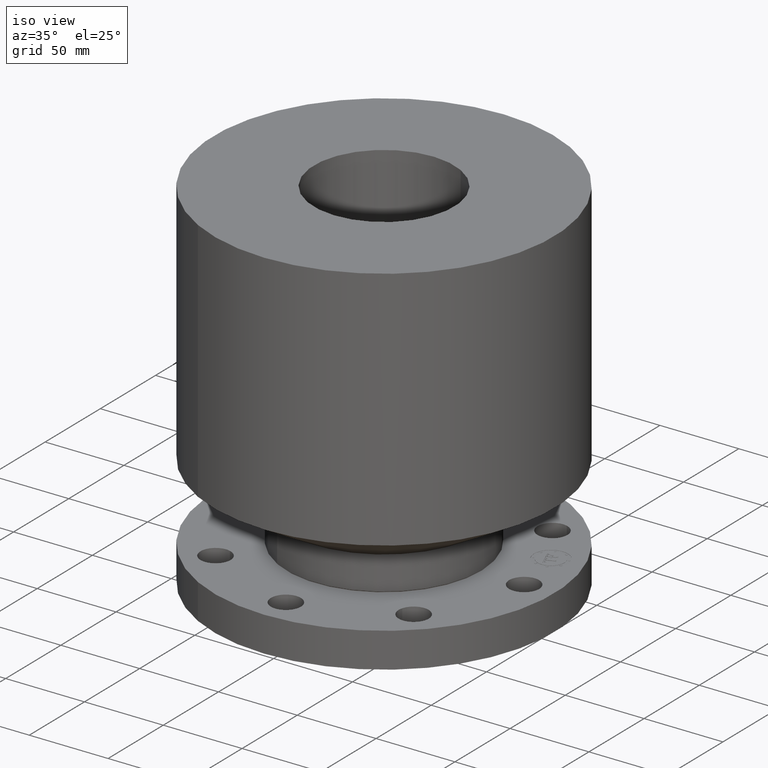
[diagram: clean part render]
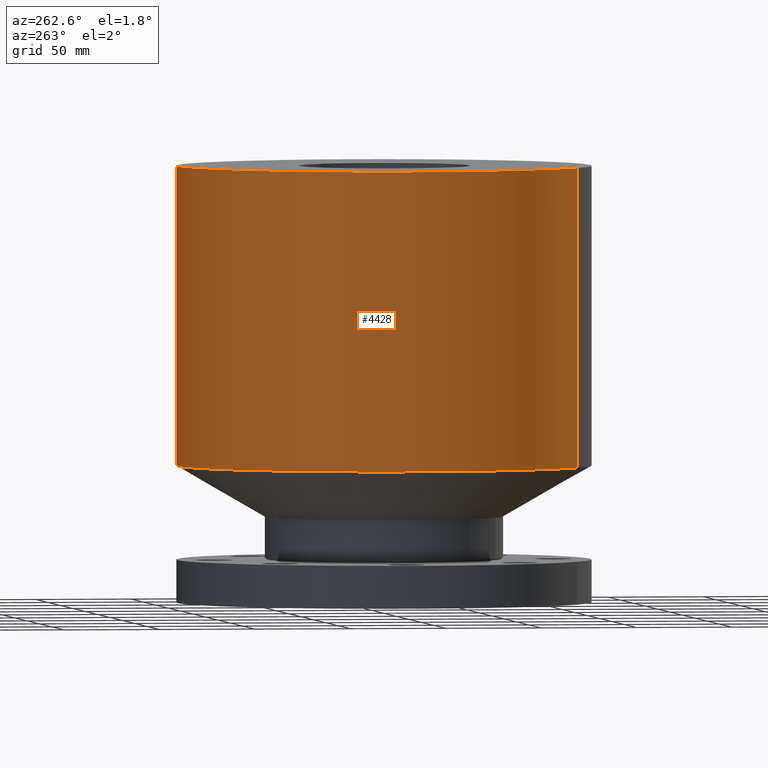
[diagram: tour spotlight — one face highlighted and labeled with its STEP entity id]
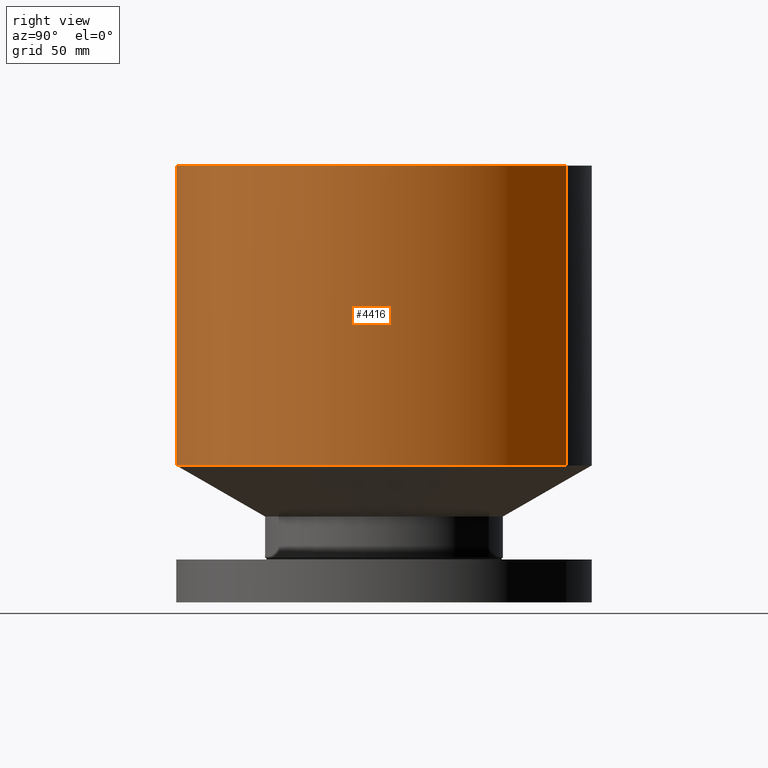
[diagram: tour spotlight — one face highlighted and labeled with its STEP entity id]
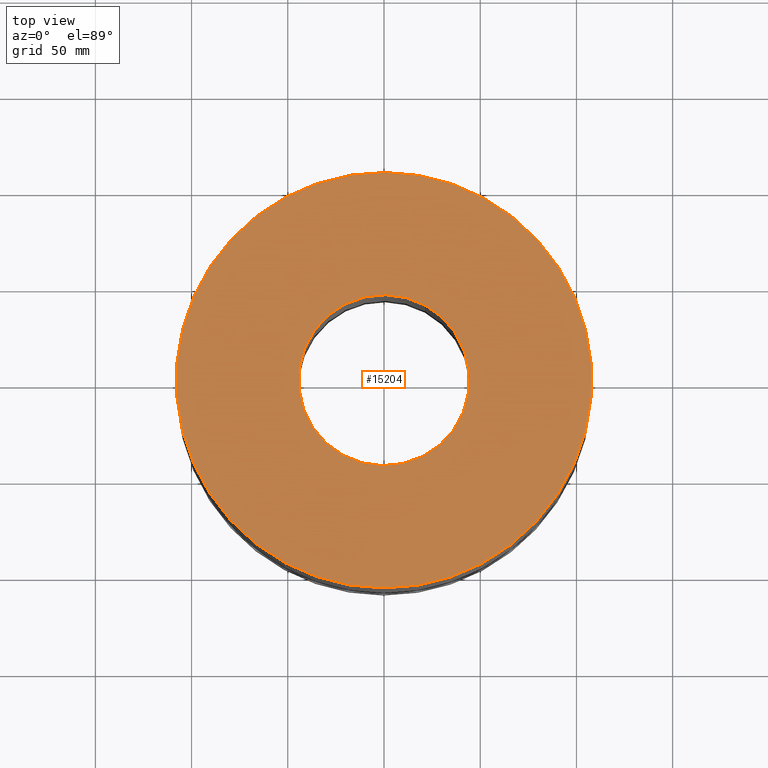
[diagram: tour spotlight — one face highlighted and labeled with its STEP entity id]
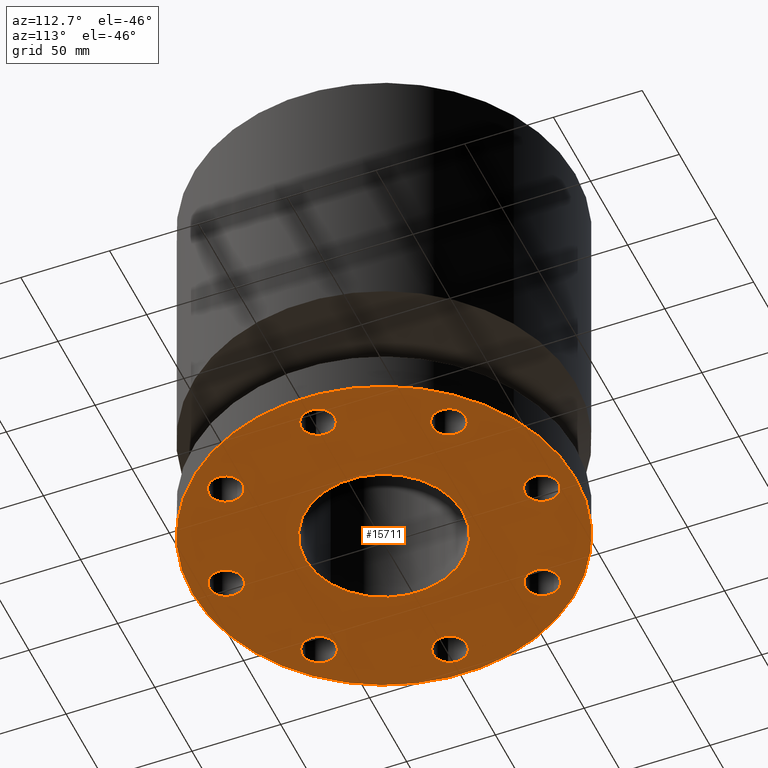
[diagram: tour spotlight — one face highlighted and labeled with its STEP entity id]
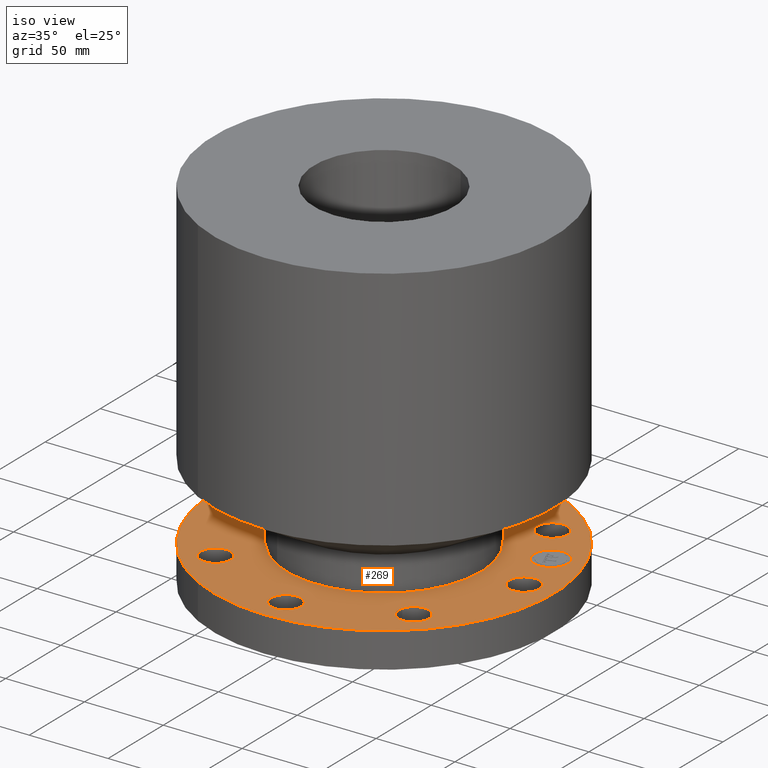
[diagram: tour spotlight — one face highlighted and labeled with its STEP entity id]
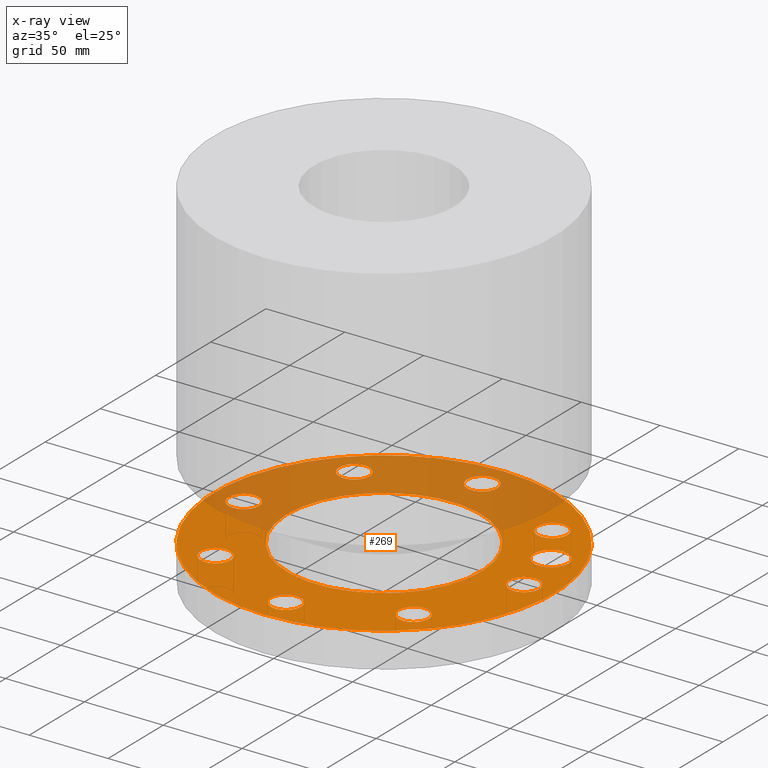
[diagram: x-ray of the same camera — body ghosted, this tour face saturated]
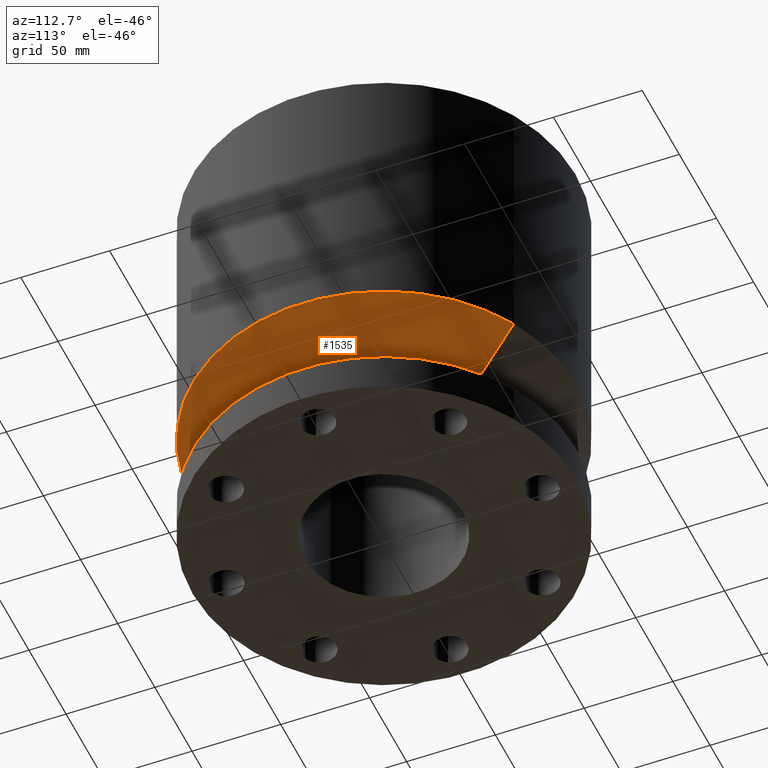
[diagram: tour spotlight — one face highlighted and labeled with its STEP entity id]
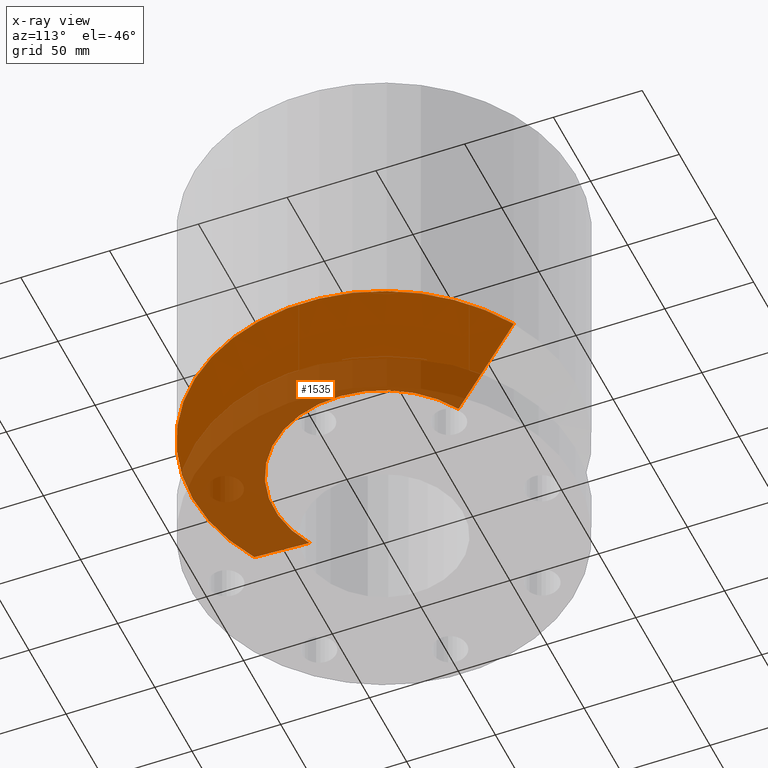
[diagram: x-ray of the same camera — body ghosted, this tour face saturated]
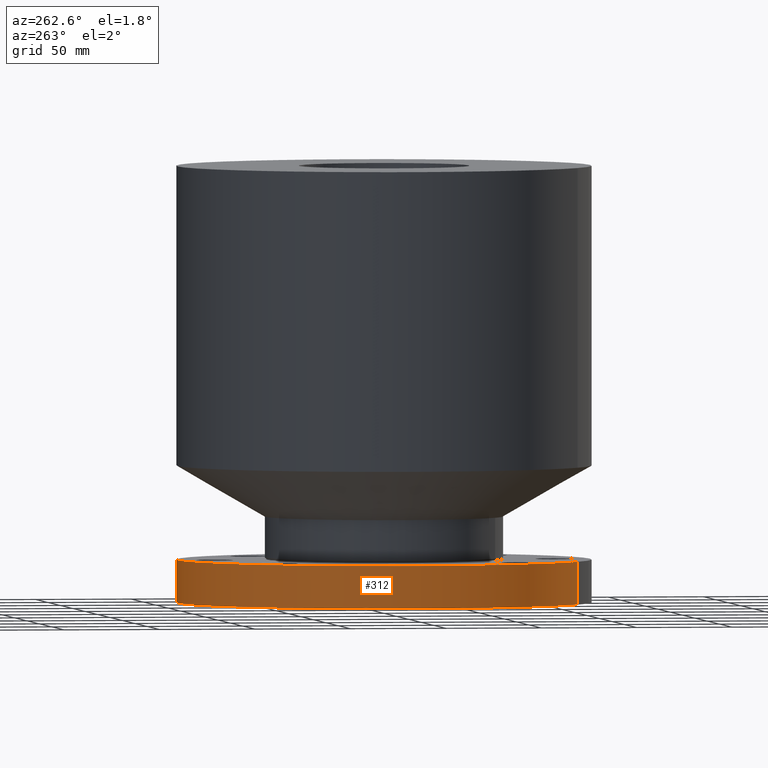
[diagram: tour spotlight — one face highlighted and labeled with its STEP entity id]
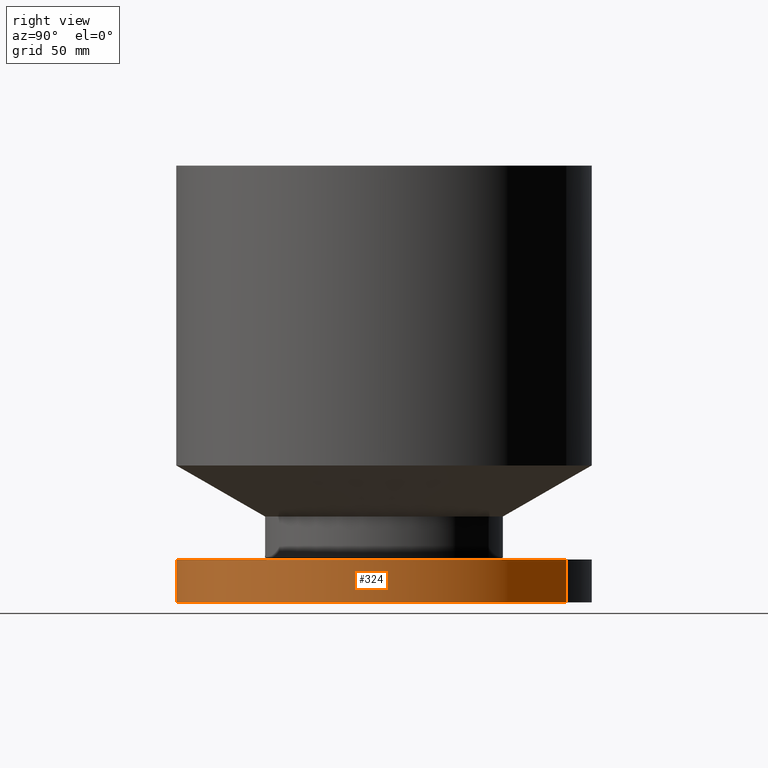
[diagram: tour spotlight — one face highlighted and labeled with its STEP entity id]
A machine part: a face-by-face anatomy tour. The part has 418 B-rep faces; the first image is the clean iso view, then the 8 largest visible faces are spotlighted one at a time (largest first), each with its STEP entity span.

Face 1 — auxiliary view, entity #4428. In plain terms, the highlighted cylindrical surface (partial cylindrical patch) has radius 107.95 mm, axis along (0, 0, -1).
Definition (entity closure, byte-faithful):
#285=AXIS2_PLACEMENT_3D('Cylinder Axis2P3D',#282,#283,#284) ;
#1538=AXIS2_PLACEMENT_3D('Circle Axis2P3D',#1536,#1537,$) ;
#4419=AXIS2_PLACEMENT_3D('Circle Axis2P3D',#4417,#4418,$) ;
#282=CARTESIAN_POINT('Axis2P3D Location',(0.,0.,4.43750000002)) ;
#1514=CARTESIAN_POINT('Vertex',(2.03755853908,3.72972588805,2.80250398724)) ;
#1521=CARTESIAN_POINT('Vertex',(-2.03755853908,-3.72972588805,2.80250398724)) ;
#1536=CARTESIAN_POINT('Axis2P3D Location',(0.,0.,2.80250398724)) ;
#4391=CARTESIAN_POINT('Line Origine',(2.03755853908,3.72972588805,5.87000199364)) ;
#4395=CARTESIAN_POINT('Vertex',(2.03755853908,3.72972588805,8.93750000004)) ;
#4402=CARTESIAN_POINT('Vertex',(-2.03755853908,-3.72972588805,8.93750000004)) ;
#4405=CARTESIAN_POINT('Line Origine',(-2.03755853908,-3.72972588805,5.87000199364)) ;
#4417=CARTESIAN_POINT('Axis2P3D Location',(0.,0.,8.93750000004)) ;
#283=DIRECTION('Axis2P3D Direction',(0.,0.,-0.0393700787402)) ;
#284=DIRECTION('Axis2P3D XDirection',(-0.0188750212049,-0.0345504945626,0.)) ;
#1537=DIRECTION('Axis2P3D Direction',(-0.,0.,0.0393700787402)) ;
#4392=DIRECTION('Vector Direction',(0.,0.,-0.0393700787402)) ;
#4406=DIRECTION('Vector Direction',(0.,0.,-0.0393700787402)) ;
#4418=DIRECTION('Axis2P3D Direction',(0.,0.,-0.0393700787402)) ;
#4393=VECTOR('Line Direction',#4392,0.0393700787402) ;
#4407=VECTOR('Line Direction',#4406,0.0393700787402) ;
#4423=ORIENTED_EDGE('',*,*,#1540,.F.) ;
#4424=ORIENTED_EDGE('',*,*,#4409,.T.) ;
#4425=ORIENTED_EDGE('',*,*,#4421,.T.) ;
#4426=ORIENTED_EDGE('',*,*,#4397,.F.) ;
#4428=ADVANCED_FACE('PartBody',(#4427),#286,.T.) ;
#1539=CIRCLE('generated circle',#1538,4.25000000002) ;
#4420=CIRCLE('generated circle',#4419,4.25000000002) ;
#286=CYLINDRICAL_SURFACE('generated cylinder',#285,4.25000000002) ;
#1540=EDGE_CURVE('',#1522,#1515,#1539,.F.) ;
#4397=EDGE_CURVE('',#1515,#4396,#4394,.F.) ;
#4409=EDGE_CURVE('',#1522,#4403,#4408,.F.) ;
#4421=EDGE_CURVE('',#4403,#4396,#4420,.T.) ;
#4422=EDGE_LOOP('',(#4423,#4424,#4425,#4426)) ;
#4427=FACE_OUTER_BOUND('',#4422,.T.) ;
#4394=LINE('Line',#4391,#4393) ;
#4408=LINE('Line',#4405,#4407) ;
#1515=VERTEX_POINT('',#1514) ;
#1522=VERTEX_POINT('',#1521) ;
#4396=VERTEX_POINT('',#4395) ;
#4403=VERTEX_POINT('',#4402) ;

Face 2 — right view, entity #4416. In plain terms, the highlighted cylindrical surface (partial cylindrical patch) has radius 107.95 mm, axis along (0, 0, -1).
Definition (entity closure, byte-faithful):
#285=AXIS2_PLACEMENT_3D('Cylinder Axis2P3D',#282,#283,#284) ;
#1519=AXIS2_PLACEMENT_3D('Circle Axis2P3D',#1517,#1518,$) ;
#4400=AXIS2_PLACEMENT_3D('Circle Axis2P3D',#4398,#4399,$) ;
#282=CARTESIAN_POINT('Axis2P3D Location',(0.,0.,4.43750000002)) ;
#1514=CARTESIAN_POINT('Vertex',(2.03755853908,3.72972588805,2.80250398724)) ;
#1517=CARTESIAN_POINT('Axis2P3D Location',(0.,0.,2.80250398724)) ;
#1521=CARTESIAN_POINT('Vertex',(-2.03755853908,-3.72972588805,2.80250398724)) ;
#4391=CARTESIAN_POINT('Line Origine',(2.03755853908,3.72972588805,5.87000199364)) ;
#4395=CARTESIAN_POINT('Vertex',(2.03755853908,3.72972588805,8.93750000004)) ;
#4398=CARTESIAN_POINT('Axis2P3D Location',(0.,0.,8.93750000004)) ;
#4402=CARTESIAN_POINT('Vertex',(-2.03755853908,-3.72972588805,8.93750000004)) ;
#4405=CARTESIAN_POINT('Line Origine',(-2.03755853908,-3.72972588805,5.87000199364)) ;
#283=DIRECTION('Axis2P3D Direction',(0.,0.,-0.0393700787402)) ;
#284=DIRECTION('Axis2P3D XDirection',(-0.0188750212049,-0.0345504945626,0.)) ;
#1518=DIRECTION('Axis2P3D Direction',(-0.,0.,0.0393700787402)) ;
#4392=DIRECTION('Vector Direction',(0.,0.,-0.0393700787402)) ;
#4399=DIRECTION('Axis2P3D Direction',(0.,0.,-0.0393700787402)) ;
#4406=DIRECTION('Vector Direction',(0.,0.,-0.0393700787402)) ;
#4393=VECTOR('Line Direction',#4392,0.0393700787402) ;
#4407=VECTOR('Line Direction',#4406,0.0393700787402) ;
#4411=ORIENTED_EDGE('',*,*,#1523,.F.) ;
#4412=ORIENTED_EDGE('',*,*,#4397,.T.) ;
#4413=ORIENTED_EDGE('',*,*,#4404,.T.) ;
#4414=ORIENTED_EDGE('',*,*,#4409,.F.) ;
#4416=ADVANCED_FACE('PartBody',(#4415),#286,.T.) ;
#1520=CIRCLE('generated circle',#1519,4.25000000002) ;
#4401=CIRCLE('generated circle',#4400,4.25000000002) ;
#286=CYLINDRICAL_SURFACE('generated cylinder',#285,4.25000000002) ;
#1523=EDGE_CURVE('',#1515,#1522,#1520,.F.) ;
#4397=EDGE_CURVE('',#1515,#4396,#4394,.F.) ;
#4404=EDGE_CURVE('',#4396,#4403,#4401,.T.) ;
#4409=EDGE_CURVE('',#1522,#4403,#4408,.F.) ;
#4410=EDGE_LOOP('',(#4411,#4412,#4413,#4414)) ;
#4415=FACE_OUTER_BOUND('',#4410,.T.) ;
#4394=LINE('Line',#4391,#4393) ;
#4408=LINE('Line',#4405,#4407) ;
#1515=VERTEX_POINT('',#1514) ;
#1522=VERTEX_POINT('',#1521) ;
#4396=VERTEX_POINT('',#4395) ;
#4403=VERTEX_POINT('',#4402) ;

Face 3 — top view, entity #15204. In plain terms, the highlighted planar face has unit normal (0, 0, -1).
Definition (entity closure, byte-faithful):
#4400=AXIS2_PLACEMENT_3D('Circle Axis2P3D',#4398,#4399,$) ;
#4419=AXIS2_PLACEMENT_3D('Circle Axis2P3D',#4417,#4418,$) ;
#15180=AXIS2_PLACEMENT_3D('Plane Axis2P3D',#15177,#15178,#15179) ;
#15188=AXIS2_PLACEMENT_3D('Circle Axis2P3D',#15186,#15187,$) ;
#15197=AXIS2_PLACEMENT_3D('Circle Axis2P3D',#15195,#15196,$) ;
#4395=CARTESIAN_POINT('Vertex',(2.03755853908,3.72972588805,8.93750000004)) ;
#4398=CARTESIAN_POINT('Axis2P3D Location',(0.,0.,8.93750000004)) ;
#4402=CARTESIAN_POINT('Vertex',(-2.03755853908,-3.72972588805,8.93750000004)) ;
#4417=CARTESIAN_POINT('Axis2P3D Location',(0.,0.,8.93750000004)) ;
#15177=CARTESIAN_POINT('Axis2P3D Location',(0.,4.25000000002,8.93750000004)) ;
#15186=CARTESIAN_POINT('Axis2P3D Location',(0.,0.,8.93750000004)) ;
#15190=CARTESIAN_POINT('Vertex',(-0.838994692561,-1.53576948331,8.93750000004)) ;
#15192=CARTESIAN_POINT('Vertex',(0.838994692561,1.53576948331,8.93750000004)) ;
#15195=CARTESIAN_POINT('Axis2P3D Location',(0.,0.,8.93750000004)) ;
#4399=DIRECTION('Axis2P3D Direction',(0.,0.,-0.0393700787402)) ;
#4418=DIRECTION('Axis2P3D Direction',(0.,0.,-0.0393700787402)) ;
#15178=DIRECTION('Axis2P3D Direction',(0.,0.,-0.0393700787402)) ;
#15179=DIRECTION('Axis2P3D XDirection',(0.0393700787402,0.,0.)) ;
#15187=DIRECTION('Axis2P3D Direction',(0.,0.,-0.0393700787402)) ;
#15196=DIRECTION('Axis2P3D Direction',(0.,0.,-0.0393700787402)) ;
#15183=ORIENTED_EDGE('',*,*,#4404,.F.) ;
#15184=ORIENTED_EDGE('',*,*,#4421,.F.) ;
#15201=ORIENTED_EDGE('',*,*,#15194,.T.) ;
#15202=ORIENTED_EDGE('',*,*,#15199,.T.) ;
#15203=FACE_BOUND('',#15200,.T.) ;
#15204=ADVANCED_FACE('PartBody',(#15185,#15203),#15181,.F.) ;
#4401=CIRCLE('generated circle',#4400,4.25000000002) ;
#4420=CIRCLE('generated circle',#4419,4.25000000002) ;
#15189=CIRCLE('generated circle',#15188,1.75000000001) ;
#15198=CIRCLE('generated circle',#15197,1.75000000001) ;
#4404=EDGE_CURVE('',#4396,#4403,#4401,.T.) ;
#4421=EDGE_CURVE('',#4403,#4396,#4420,.T.) ;
#15194=EDGE_CURVE('',#15191,#15193,#15189,.T.) ;
#15199=EDGE_CURVE('',#15193,#15191,#15198,.T.) ;
#15182=EDGE_LOOP('',(#15183,#15184)) ;
#15200=EDGE_LOOP('',(#15201,#15202)) ;
#15185=FACE_OUTER_BOUND('',#15182,.T.) ;
#15181=PLANE('',#15180) ;
#4396=VERTEX_POINT('',#4395) ;
#4403=VERTEX_POINT('',#4402) ;
#15191=VERTEX_POINT('',#15190) ;
#15193=VERTEX_POINT('',#15192) ;

Face 4 — auxiliary view, entity #15711. In plain terms, the highlighted planar face has unit normal (0, 0, 1).
Definition (entity closure, byte-faithful):
#51=AXIS2_PLACEMENT_3D('Circle Axis2P3D',#49,#50,$) ;
#272=AXIS2_PLACEMENT_3D('Circle Axis2P3D',#270,#271,$) ;
#289=AXIS2_PLACEMENT_3D('Circle Axis2P3D',#287,#288,$) ;
#315=AXIS2_PLACEMENT_3D('Circle Axis2P3D',#313,#314,$) ;
#382=AXIS2_PLACEMENT_3D('Circle Axis2P3D',#380,#381,$) ;
#401=AXIS2_PLACEMENT_3D('Circle Axis2P3D',#399,#400,$) ;
#425=AXIS2_PLACEMENT_3D('Circle Axis2P3D',#423,#424,$) ;
#444=AXIS2_PLACEMENT_3D('Circle Axis2P3D',#442,#443,$) ;
#468=AXIS2_PLACEMENT_3D('Circle Axis2P3D',#466,#467,$) ;
#487=AXIS2_PLACEMENT_3D('Circle Axis2P3D',#485,#486,$) ;
#511=AXIS2_PLACEMENT_3D('Circle Axis2P3D',#509,#510,$) ;
#530=AXIS2_PLACEMENT_3D('Circle Axis2P3D',#528,#529,$) ;
#554=AXIS2_PLACEMENT_3D('Circle Axis2P3D',#552,#553,$) ;
#573=AXIS2_PLACEMENT_3D('Circle Axis2P3D',#571,#572,$) ;
#597=AXIS2_PLACEMENT_3D('Circle Axis2P3D',#595,#596,$) ;
#616=AXIS2_PLACEMENT_3D('Circle Axis2P3D',#614,#615,$) ;
#640=AXIS2_PLACEMENT_3D('Circle Axis2P3D',#638,#639,$) ;
#659=AXIS2_PLACEMENT_3D('Circle Axis2P3D',#657,#658,$) ;
#15630=AXIS2_PLACEMENT_3D('Circle Axis2P3D',#15628,#15629,$) ;
#15656=AXIS2_PLACEMENT_3D('Circle Axis2P3D',#15654,#15655,$) ;
#15669=AXIS2_PLACEMENT_3D('Plane Axis2P3D',#15666,#15667,#15668) ;
#46=CARTESIAN_POINT('Vertex',(3.82909346072,0.179784576977,2.2401153548E-016)) ;
#49=CARTESIAN_POINT('Axis2P3D Location',(3.50000000001,0.,0.)) ;
#53=CARTESIAN_POINT('Vertex',(3.1709065393,-0.179784576977,2.2401153548E-016)) ;
#270=CARTESIAN_POINT('Axis2P3D Location',(3.50000000001,0.,0.)) ;
#287=CARTESIAN_POINT('Axis2P3D Location',(0.,0.,5.59482469102E-016)) ;
#291=CARTESIAN_POINT('Vertex',(-2.03755853908,-3.72972588805,5.59482469102E-016)) ;
#293=CARTESIAN_POINT('Vertex',(2.03755853908,3.72972588805,5.59482469102E-016)) ;
#313=CARTESIAN_POINT('Axis2P3D Location',(0.,0.,5.59482469102E-016)) ;
#377=CARTESIAN_POINT('Vertex',(2.83470484541,-2.58045105834,2.2401153548E-016)) ;
#380=CARTESIAN_POINT('Axis2P3D Location',(2.47487373416,-2.47487373416,0.)) ;
#384=CARTESIAN_POINT('Vertex',(2.11504262292,-2.36929640998,2.2401153548E-016)) ;
#399=CARTESIAN_POINT('Axis2P3D Location',(2.47487373416,-2.47487373416,0.)) ;
#420=CARTESIAN_POINT('Vertex',(0.179784576977,-3.82909346072,2.2401153548E-016)) ;
#423=CARTESIAN_POINT('Axis2P3D Location',(-3.45169279251E-016,-3.50000000001,0.)) ;
#427=CARTESIAN_POINT('Vertex',(-0.179784576977,-3.1709065393,2.2401153548E-016)) ;
#442=CARTESIAN_POINT('Axis2P3D Location',(-3.45169279251E-016,-3.50000000001,0.)) ;
#463=CARTESIAN_POINT('Vertex',(-2.58045105834,-2.83470484541,2.2401153548E-016)) ;
#466=CARTESIAN_POINT('Axis2P3D Location',(-2.47487373416,-2.47487373416,0.)) ;
#470=CARTESIAN_POINT('Vertex',(-2.36929640998,-2.11504262292,2.2401153548E-016)) ;
#485=CARTESIAN_POINT('Axis2P3D Location',(-2.47487373416,-2.47487373416,0.)) ;
#506=CARTESIAN_POINT('Vertex',(-3.82909346072,-0.179784576977,2.2401153548E-016)) ;
#509=CARTESIAN_POINT('Axis2P3D Location',(-3.50000000001,-4.28626379703E-016,0.)) ;
#513=CARTESIAN_POINT('Vertex',(-3.1709065393,0.179784576977,2.2401153548E-016)) ;
#528=CARTESIAN_POINT('Axis2P3D Location',(-3.50000000001,-4.28626379703E-016,0.)) ;
#549=CARTESIAN_POINT('Vertex',(-2.83470484541,2.58045105834,2.2401153548E-016)) ;
#552=CARTESIAN_POINT('Axis2P3D Location',(-2.47487373416,2.47487373416,0.)) ;
#556=CARTESIAN_POINT('Vertex',(-2.11504262292,2.36929640998,2.2401153548E-016)) ;
#571=CARTESIAN_POINT('Axis2P3D Location',(-2.47487373416,2.47487373416,0.)) ;
#592=CARTESIAN_POINT('Vertex',(-0.179784576977,3.82909346072,2.2401153548E-016)) ;
#595=CARTESIAN_POINT('Axis2P3D Location',(-6.42939569555E-016,3.50000000001,0.)) ;
#599=CARTESIAN_POINT('Vertex',(0.179784576977,3.1709065393,2.2401153548E-016)) ;
#614=CARTESIAN_POINT('Axis2P3D Location',(-6.42939569555E-016,3.50000000001,0.)) ;
#635=CARTESIAN_POINT('Vertex',(2.58045105834,2.83470484541,2.2401153548E-016)) ;
#638=CARTESIAN_POINT('Axis2P3D Location',(2.47487373416,2.47487373416,0.)) ;
#642=CARTESIAN_POINT('Vertex',(2.36929640998,2.11504262292,2.2401153548E-016)) ;
#657=CARTESIAN_POINT('Axis2P3D Location',(2.47487373416,2.47487373416,0.)) ;
#15628=CARTESIAN_POINT('Axis2P3D Location',(0.,0.,0.)) ;
#15632=CARTESIAN_POINT('Vertex',(-0.838994692561,-1.53576948331,0.)) ;
#15634=CARTESIAN_POINT('Vertex',(0.838994692561,1.53576948331,0.)) ;
#15654=CARTESIAN_POINT('Axis2P3D Location',(0.,0.,0.)) ;
#15666=CARTESIAN_POINT('Axis2P3D Location',(0.,0.,0.)) ;
#50=DIRECTION('Axis2P3D Direction',(0.,-0.,0.0393700787402)) ;
#271=DIRECTION('Axis2P3D Direction',(0.,-0.,0.0393700787402)) ;
#288=DIRECTION('Axis2P3D Direction',(0.,0.,-0.0393700787402)) ;
#314=DIRECTION('Axis2P3D Direction',(0.,0.,-0.0393700787402)) ;
#381=DIRECTION('Axis2P3D Direction',(-0.,0.,0.0393700787402)) ;
#400=DIRECTION('Axis2P3D Direction',(-0.,0.,0.0393700787402)) ;
#424=DIRECTION('Axis2P3D Direction',(-0.,0.,0.0393700787402)) ;
#443=DIRECTION('Axis2P3D Direction',(-0.,0.,0.0393700787402)) ;
#467=DIRECTION('Axis2P3D Direction',(0.,0.,0.0393700787402)) ;
#486=DIRECTION('Axis2P3D Direction',(0.,0.,0.0393700787402)) ;
#510=DIRECTION('Axis2P3D Direction',(0.,0.,0.0393700787402)) ;
#529=DIRECTION('Axis2P3D Direction',(0.,0.,0.0393700787402)) ;
#553=DIRECTION('Axis2P3D Direction',(0.,0.,0.0393700787402)) ;
#572=DIRECTION('Axis2P3D Direction',(0.,0.,0.0393700787402)) ;
#596=DIRECTION('Axis2P3D Direction',(0.,0.,0.0393700787402)) ;
#615=DIRECTION('Axis2P3D Direction',(0.,0.,0.0393700787402)) ;
#639=DIRECTION('Axis2P3D Direction',(0.,-0.,0.0393700787402)) ;
#658=DIRECTION('Axis2P3D Direction',(0.,-0.,0.0393700787402)) ;
#15629=DIRECTION('Axis2P3D Direction',(0.,0.,-0.0393700787402)) ;
#15655=DIRECTION('Axis2P3D Direction',(0.,0.,-0.0393700787402)) ;
#15667=DIRECTION('Axis2P3D Direction',(0.,0.,0.0393700787402)) ;
#15668=DIRECTION('Axis2P3D XDirection',(0.0393700787402,0.,0.)) ;
#15672=ORIENTED_EDGE('',*,*,#317,.T.) ;
#15673=ORIENTED_EDGE('',*,*,#295,.T.) ;
#15676=ORIENTED_EDGE('',*,*,#644,.F.) ;
#15677=ORIENTED_EDGE('',*,*,#661,.F.) ;
#15680=ORIENTED_EDGE('',*,*,#601,.F.) ;
#15681=ORIENTED_EDGE('',*,*,#618,.F.) ;
#15684=ORIENTED_EDGE('',*,*,#558,.F.) ;
#15685=ORIENTED_EDGE('',*,*,#575,.F.) ;
#15688=ORIENTED_EDGE('',*,*,#515,.F.) ;
#15689=ORIENTED_EDGE('',*,*,#532,.F.) ;
#15692=ORIENTED_EDGE('',*,*,#472,.F.) ;
#15693=ORIENTED_EDGE('',*,*,#489,.F.) ;
#15696=ORIENTED_EDGE('',*,*,#429,.F.) ;
#15697=ORIENTED_EDGE('',*,*,#446,.F.) ;
#15700=ORIENTED_EDGE('',*,*,#386,.F.) ;
#15701=ORIENTED_EDGE('',*,*,#403,.F.) ;
#15704=ORIENTED_EDGE('',*,*,#274,.F.) ;
#15705=ORIENTED_EDGE('',*,*,#55,.F.) ;
#15708=ORIENTED_EDGE('',*,*,#15658,.T.) ;
#15709=ORIENTED_EDGE('',*,*,#15636,.T.) ;
#15678=FACE_BOUND('',#15675,.T.) ;
#15682=FACE_BOUND('',#15679,.T.) ;
#15686=FACE_BOUND('',#15683,.T.) ;
#15690=FACE_BOUND('',#15687,.T.) ;
#15694=FACE_BOUND('',#15691,.T.) ;
#15698=FACE_BOUND('',#15695,.T.) ;
#15702=FACE_BOUND('',#15699,.T.) ;
#15706=FACE_BOUND('',#15703,.T.) ;
#15710=FACE_BOUND('',#15707,.T.) ;
#15711=ADVANCED_FACE('PartBody',(#15674,#15678,#15682,#15686,#15690,#15694,#15698,#15702,#15706,#15710),#15670,.F.) ;
#52=CIRCLE('generated circle',#51,0.375000000002) ;
#273=CIRCLE('generated circle',#272,0.375000000002) ;
#290=CIRCLE('generated circle',#289,4.25000000002) ;
#316=CIRCLE('generated circle',#315,4.25000000002) ;
#383=CIRCLE('generated circle',#382,0.375000000002) ;
#402=CIRCLE('generated circle',#401,0.375000000002) ;
#426=CIRCLE('generated circle',#425,0.375000000002) ;
#445=CIRCLE('generated circle',#444,0.375000000002) ;
#469=CIRCLE('generated circle',#468,0.375000000002) ;
#488=CIRCLE('generated circle',#487,0.375000000002) ;
#512=CIRCLE('generated circle',#511,0.375000000001) ;
#531=CIRCLE('generated circle',#530,0.375000000001) ;
#555=CIRCLE('generated circle',#554,0.375000000002) ;
#574=CIRCLE('generated circle',#573,0.375000000002) ;
#598=CIRCLE('generated circle',#597,0.375000000002) ;
#617=CIRCLE('generated circle',#616,0.375000000002) ;
#641=CIRCLE('generated circle',#640,0.375000000002) ;
#660=CIRCLE('generated circle',#659,0.375000000002) ;
#15631=CIRCLE('generated circle',#15630,1.75000000001) ;
#15657=CIRCLE('generated circle',#15656,1.75000000001) ;
#55=EDGE_CURVE('',#47,#54,#52,.F.) ;
#274=EDGE_CURVE('',#54,#47,#273,.F.) ;
#295=EDGE_CURVE('',#292,#294,#290,.T.) ;
#317=EDGE_CURVE('',#294,#292,#316,.T.) ;
#386=EDGE_CURVE('',#378,#385,#383,.F.) ;
#403=EDGE_CURVE('',#385,#378,#402,.F.) ;
#429=EDGE_CURVE('',#421,#428,#426,.F.) ;
#446=EDGE_CURVE('',#428,#421,#445,.F.) ;
#472=EDGE_CURVE('',#464,#471,#469,.F.) ;
#489=EDGE_CURVE('',#471,#464,#488,.F.) ;
#515=EDGE_CURVE('',#507,#514,#512,.F.) ;
#532=EDGE_CURVE('',#514,#507,#531,.F.) ;
#558=EDGE_CURVE('',#550,#557,#555,.F.) ;
#575=EDGE_CURVE('',#557,#550,#574,.F.) ;
#601=EDGE_CURVE('',#593,#600,#598,.F.) ;
#618=EDGE_CURVE('',#600,#593,#617,.F.) ;
#644=EDGE_CURVE('',#636,#643,#641,.F.) ;
#661=EDGE_CURVE('',#643,#636,#660,.F.) ;
#15636=EDGE_CURVE('',#15633,#15635,#15631,.F.) ;
#15658=EDGE_CURVE('',#15635,#15633,#15657,.F.) ;
#15671=EDGE_LOOP('',(#15672,#15673)) ;
#15675=EDGE_LOOP('',(#15676,#15677)) ;
#15679=EDGE_LOOP('',(#15680,#15681)) ;
#15683=EDGE_LOOP('',(#15684,#15685)) ;
#15687=EDGE_LOOP('',(#15688,#15689)) ;
#15691=EDGE_LOOP('',(#15692,#15693)) ;
#15695=EDGE_LOOP('',(#15696,#15697)) ;
#15699=EDGE_LOOP('',(#15700,#15701)) ;
#15703=EDGE_LOOP('',(#15704,#15705)) ;
#15707=EDGE_LOOP('',(#15708,#15709)) ;
#15674=FACE_OUTER_BOUND('',#15671,.T.) ;
#15670=PLANE('',#15669) ;
#47=VERTEX_POINT('',#46) ;
#54=VERTEX_POINT('',#53) ;
#292=VERTEX_POINT('',#291) ;
#294=VERTEX_POINT('',#293) ;
#378=VERTEX_POINT('',#377) ;
#385=VERTEX_POINT('',#384) ;
#421=VERTEX_POINT('',#420) ;
#428=VERTEX_POINT('',#427) ;
#464=VERTEX_POINT('',#463) ;
#471=VERTEX_POINT('',#470) ;
#507=VERTEX_POINT('',#506) ;
#514=VERTEX_POINT('',#513) ;
#550=VERTEX_POINT('',#549) ;
#557=VERTEX_POINT('',#556) ;
#593=VERTEX_POINT('',#592) ;
#600=VERTEX_POINT('',#599) ;
#636=VERTEX_POINT('',#635) ;
#643=VERTEX_POINT('',#642) ;
#15633=VERTEX_POINT('',#15632) ;
#15635=VERTEX_POINT('',#15634) ;

Face 5 — iso view, entity #269. An x-ray twin of the same camera follows (body ghosted, this face saturated) — the face is partly hidden behind the body. In plain terms, the highlighted planar face has unit normal (0, 0, -1).
Definition (entity closure, byte-faithful):
#65=AXIS2_PLACEMENT_3D('Circle Axis2P3D',#63,#64,$) ;
#78=AXIS2_PLACEMENT_3D('Plane Axis2P3D',#75,#76,#77) ;
#82=AXIS2_PLACEMENT_3D('Circle Axis2P3D',#80,#81,$) ;
#91=AXIS2_PLACEMENT_3D('Circle Axis2P3D',#89,#90,$) ;
#100=AXIS2_PLACEMENT_3D('Circle Axis2P3D',#98,#99,$) ;
#109=AXIS2_PLACEMENT_3D('Circle Axis2P3D',#107,#108,$) ;
#118=AXIS2_PLACEMENT_3D('Circle Axis2P3D',#116,#117,$) ;
#127=AXIS2_PLACEMENT_3D('Circle Axis2P3D',#125,#126,$) ;
#136=AXIS2_PLACEMENT_3D('Circle Axis2P3D',#134,#135,$) ;
#145=AXIS2_PLACEMENT_3D('Circle Axis2P3D',#143,#144,$) ;
#154=AXIS2_PLACEMENT_3D('Circle Axis2P3D',#152,#153,$) ;
#163=AXIS2_PLACEMENT_3D('Circle Axis2P3D',#161,#162,$) ;
#172=AXIS2_PLACEMENT_3D('Circle Axis2P3D',#170,#171,$) ;
#181=AXIS2_PLACEMENT_3D('Circle Axis2P3D',#179,#180,$) ;
#190=AXIS2_PLACEMENT_3D('Circle Axis2P3D',#188,#189,$) ;
#199=AXIS2_PLACEMENT_3D('Circle Axis2P3D',#197,#198,$) ;
#208=AXIS2_PLACEMENT_3D('Circle Axis2P3D',#206,#207,$) ;
#217=AXIS2_PLACEMENT_3D('Circle Axis2P3D',#215,#216,$) ;
#226=AXIS2_PLACEMENT_3D('Circle Axis2P3D',#224,#225,$) ;
#235=AXIS2_PLACEMENT_3D('Circle Axis2P3D',#233,#234,$) ;
#244=AXIS2_PLACEMENT_3D('Circle Axis2P3D',#242,#243,$) ;
#253=AXIS2_PLACEMENT_3D('Circle Axis2P3D',#251,#252,$) ;
#262=AXIS2_PLACEMENT_3D('Circle Axis2P3D',#260,#261,$) ;
#44=CARTESIAN_POINT('Vertex',(3.82909346072,0.179784576977,0.877500000004)) ;
#60=CARTESIAN_POINT('Vertex',(3.1709065393,-0.179784576977,0.877500000004)) ;
#63=CARTESIAN_POINT('Axis2P3D Location',(3.50000000001,0.,0.877500000004)) ;
#75=CARTESIAN_POINT('Axis2P3D Location',(0.,4.25000000002,0.877500000004)) ;
#80=CARTESIAN_POINT('Axis2P3D Location',(0.,0.,0.877500000004)) ;
#84=CARTESIAN_POINT('Vertex',(2.03755853908,3.72972588805,0.877500000004)) ;
#86=CARTESIAN_POINT('Vertex',(-2.03755853908,-3.72972588805,0.877500000004)) ;
#89=CARTESIAN_POINT('Axis2P3D Location',(0.,0.,0.877500000004)) ;
#98=CARTESIAN_POINT('Axis2P3D Location',(3.50000000001,0.,0.877500000004)) ;
#107=CARTESIAN_POINT('Axis2P3D Location',(0.,0.,0.877500000004)) ;
#111=CARTESIAN_POINT('Vertex',(-1.16260693112,-2.12813771259,0.877500000004)) ;
#113=CARTESIAN_POINT('Vertex',(1.16260693112,2.12813771259,0.877500000004)) ;
#116=CARTESIAN_POINT('Axis2P3D Location',(0.,0.,0.877500000004)) ;
#125=CARTESIAN_POINT('Axis2P3D Location',(2.47487373416,-2.47487373416,0.877500000004)) ;
#129=CARTESIAN_POINT('Vertex',(2.11504262292,-2.36929640998,0.877500000004)) ;
#131=CARTESIAN_POINT('Vertex',(2.83470484541,-2.58045105834,0.877500000004)) ;
#134=CARTESIAN_POINT('Axis2P3D Location',(2.47487373416,-2.47487373416,0.877500000004)) ;
#143=CARTESIAN_POINT('Axis2P3D Location',(-9.79094320929E-016,-3.50000000001,0.877500000004)) ;
#147=CARTESIAN_POINT('Vertex',(-0.179784576977,-3.1709065393,0.877500000004)) ;
#149=CARTESIAN_POINT('Vertex',(0.179784576977,-3.82909346072,0.877500000004)) ;
#152=CARTESIAN_POINT('Axis2P3D Location',(2.79741234551E-016,-3.50000000001,0.877500000004)) ;
#161=CARTESIAN_POINT('Axis2P3D Location',(-2.47487373416,-2.47487373416,0.877500000004)) ;
#165=CARTESIAN_POINT('Vertex',(-2.36929640998,-2.11504262292,0.877500000004)) ;
#167=CARTESIAN_POINT('Vertex',(-2.58045105834,-2.83470484541,0.877500000004)) ;
#170=CARTESIAN_POINT('Axis2P3D Location',(-2.47487373416,-2.47487373416,0.877500000004)) ;
#179=CARTESIAN_POINT('Axis2P3D Location',(-3.50000000001,-5.59482469102E-016,0.877500000004)) ;
#183=CARTESIAN_POINT('Vertex',(-3.1709065393,0.179784576977,0.877500000004)) ;
#185=CARTESIAN_POINT('Vertex',(-3.82909346072,-0.179784576977,0.877500000004)) ;
#188=CARTESIAN_POINT('Axis2P3D Location',(-3.50000000001,-5.59482469102E-016,0.877500000004)) ;
#197=CARTESIAN_POINT('Axis2P3D Location',(-2.47487373416,2.47487373416,0.877500000004)) ;
#201=CARTESIAN_POINT('Vertex',(-2.11504262292,2.36929640998,0.877500000004)) ;
#203=CARTESIAN_POINT('Vertex',(-2.83470484541,2.58045105834,0.877500000004)) ;
#206=CARTESIAN_POINT('Axis2P3D Location',(-2.47487373416,2.47487373416,0.877500000004)) ;
#215=CARTESIAN_POINT('Axis2P3D Location',(-6.2941777774E-016,3.50000000001,0.877500000004)) ;
#219=CARTESIAN_POINT('Vertex',(0.179784576977,3.1709065393,0.877500000004)) ;
#221=CARTESIAN_POINT('Vertex',(-0.179784576977,3.82909346072,0.877500000004)) ;
#224=CARTESIAN_POINT('Axis2P3D Location',(-5.24514814784E-016,3.50000000001,0.877500000004)) ;
#233=CARTESIAN_POINT('Axis2P3D Location',(2.47487373416,2.47487373416,0.877500000004)) ;
#237=CARTESIAN_POINT('Vertex',(2.36929640998,2.11504262292,0.877500000004)) ;
#239=CARTESIAN_POINT('Vertex',(2.58045105834,2.83470484541,0.877500000004)) ;
#242=CARTESIAN_POINT('Axis2P3D Location',(2.47487373416,2.47487373416,0.877500000004)) ;
#251=CARTESIAN_POINT('Axis2P3D Location',(3.2335783638,1.33939201328,0.877500000004)) ;
#255=CARTESIAN_POINT('Vertex',(3.39621882093,0.946743215891,0.877500000004)) ;
#257=CARTESIAN_POINT('Vertex',(3.07093790667,1.73204081068,0.877500000004)) ;
#260=CARTESIAN_POINT('Axis2P3D Location',(3.2335783638,1.33939201328,0.877500000004)) ;
#64=DIRECTION('Axis2P3D Direction',(0.,-0.,0.0393700787402)) ;
#76=DIRECTION('Axis2P3D Direction',(0.,0.,-0.0393700787402)) ;
#77=DIRECTION('Axis2P3D XDirection',(0.0393700787402,0.,0.)) ;
#81=DIRECTION('Axis2P3D Direction',(0.,0.,-0.0393700787402)) ;
#90=DIRECTION('Axis2P3D Direction',(0.,0.,-0.0393700787402)) ;
#99=DIRECTION('Axis2P3D Direction',(0.,0.,-0.0393700787402)) ;
#108=DIRECTION('Axis2P3D Direction',(0.,0.,-0.0393700787402)) ;
#117=DIRECTION('Axis2P3D Direction',(0.,0.,-0.0393700787402)) ;
#126=DIRECTION('Axis2P3D Direction',(0.,0.,-0.0393700787402)) ;
#135=DIRECTION('Axis2P3D Direction',(0.,0.,-0.0393700787402)) ;
#144=DIRECTION('Axis2P3D Direction',(0.,0.,-0.0393700787402)) ;
#153=DIRECTION('Axis2P3D Direction',(0.,0.,-0.0393700787402)) ;
#162=DIRECTION('Axis2P3D Direction',(0.,0.,-0.0393700787402)) ;
#171=DIRECTION('Axis2P3D Direction',(0.,0.,-0.0393700787402)) ;
#180=DIRECTION('Axis2P3D Direction',(0.,0.,-0.0393700787402)) ;
#189=DIRECTION('Axis2P3D Direction',(0.,0.,-0.0393700787402)) ;
#198=DIRECTION('Axis2P3D Direction',(0.,0.,-0.0393700787402)) ;
#207=DIRECTION('Axis2P3D Direction',(0.,0.,-0.0393700787402)) ;
#216=DIRECTION('Axis2P3D Direction',(0.,0.,-0.0393700787402)) ;
#225=DIRECTION('Axis2P3D Direction',(0.,0.,-0.0393700787402)) ;
#234=DIRECTION('Axis2P3D Direction',(0.,0.,-0.0393700787402)) ;
#243=DIRECTION('Axis2P3D Direction',(0.,0.,-0.0393700787402)) ;
#252=DIRECTION('Axis2P3D Direction',(0.,0.,-0.0393700787402)) ;
#261=DIRECTION('Axis2P3D Direction',(0.,0.,-0.0393700787402)) ;
#95=ORIENTED_EDGE('',*,*,#88,.F.) ;
#96=ORIENTED_EDGE('',*,*,#93,.F.) ;
#104=ORIENTED_EDGE('',*,*,#67,.T.) ;
#105=ORIENTED_EDGE('',*,*,#102,.T.) ;
#122=ORIENTED_EDGE('',*,*,#115,.T.) ;
#123=ORIENTED_EDGE('',*,*,#120,.T.) ;
#140=ORIENTED_EDGE('',*,*,#133,.T.) ;
#141=ORIENTED_EDGE('',*,*,#138,.T.) ;
#158=ORIENTED_EDGE('',*,*,#151,.T.) ;
#159=ORIENTED_EDGE('',*,*,#156,.T.) ;
#176=ORIENTED_EDGE('',*,*,#169,.T.) ;
#177=ORIENTED_EDGE('',*,*,#174,.T.) ;
#194=ORIENTED_EDGE('',*,*,#187,.T.) ;
#195=ORIENTED_EDGE('',*,*,#192,.T.) ;
#212=ORIENTED_EDGE('',*,*,#205,.T.) ;
#213=ORIENTED_EDGE('',*,*,#210,.T.) ;
#230=ORIENTED_EDGE('',*,*,#223,.T.) ;
#231=ORIENTED_EDGE('',*,*,#228,.T.) ;
#248=ORIENTED_EDGE('',*,*,#241,.T.) ;
#249=ORIENTED_EDGE('',*,*,#246,.T.) ;
#266=ORIENTED_EDGE('',*,*,#259,.F.) ;
#267=ORIENTED_EDGE('',*,*,#264,.F.) ;
#106=FACE_BOUND('',#103,.T.) ;
#124=FACE_BOUND('',#121,.T.) ;
#142=FACE_BOUND('',#139,.T.) ;
#160=FACE_BOUND('',#157,.T.) ;
#178=FACE_BOUND('',#175,.T.) ;
#196=FACE_BOUND('',#193,.T.) ;
#214=FACE_BOUND('',#211,.T.) ;
#232=FACE_BOUND('',#229,.T.) ;
#250=FACE_BOUND('',#247,.T.) ;
#268=FACE_BOUND('',#265,.T.) ;
#269=ADVANCED_FACE('PartBody',(#97,#106,#124,#142,#160,#178,#196,#214,#232,#250,#268),#79,.F.) ;
#66=CIRCLE('generated circle',#65,0.375000000002) ;
#83=CIRCLE('generated circle',#82,4.25000000002) ;
#92=CIRCLE('generated circle',#91,4.25000000002) ;
#101=CIRCLE('generated circle',#100,0.375000000002) ;
#110=CIRCLE('generated circle',#109,2.42500000001) ;
#119=CIRCLE('generated circle',#118,2.42500000001) ;
#128=CIRCLE('generated circle',#127,0.375000000002) ;
#137=CIRCLE('generated circle',#136,0.375000000001) ;
#146=CIRCLE('generated circle',#145,0.375000000002) ;
#155=CIRCLE('generated circle',#154,0.375000000002) ;
#164=CIRCLE('generated circle',#163,0.375000000002) ;
#173=CIRCLE('generated circle',#172,0.375000000002) ;
#182=CIRCLE('generated circle',#181,0.375000000001) ;
#191=CIRCLE('generated circle',#190,0.375000000001) ;
#200=CIRCLE('generated circle',#199,0.375000000002) ;
#209=CIRCLE('generated circle',#208,0.375000000002) ;
#218=CIRCLE('generated circle',#217,0.375000000002) ;
#227=CIRCLE('generated circle',#226,0.375000000002) ;
#236=CIRCLE('generated circle',#235,0.375000000002) ;
#245=CIRCLE('generated circle',#244,0.375000000002) ;
#254=CIRCLE('generated circle',#253,0.424999995752) ;
#263=CIRCLE('generated circle',#262,0.424999995752) ;
#67=EDGE_CURVE('',#45,#61,#66,.F.) ;
#88=EDGE_CURVE('',#85,#87,#83,.T.) ;
#93=EDGE_CURVE('',#87,#85,#92,.T.) ;
#102=EDGE_CURVE('',#61,#45,#101,.T.) ;
#115=EDGE_CURVE('',#112,#114,#110,.T.) ;
#120=EDGE_CURVE('',#114,#112,#119,.T.) ;
#133=EDGE_CURVE('',#130,#132,#128,.T.) ;
#138=EDGE_CURVE('',#132,#130,#137,.T.) ;
#151=EDGE_CURVE('',#148,#150,#146,.T.) ;
#156=EDGE_CURVE('',#150,#148,#155,.T.) ;
#169=EDGE_CURVE('',#166,#168,#164,.T.) ;
#174=EDGE_CURVE('',#168,#166,#173,.T.) ;
#187=EDGE_CURVE('',#184,#186,#182,.T.) ;
#192=EDGE_CURVE('',#186,#184,#191,.T.) ;
#205=EDGE_CURVE('',#202,#204,#200,.T.) ;
#210=EDGE_CURVE('',#204,#202,#209,.T.) ;
#223=EDGE_CURVE('',#220,#222,#218,.T.) ;
#228=EDGE_CURVE('',#222,#220,#227,.T.) ;
#241=EDGE_CURVE('',#238,#240,#236,.T.) ;
#246=EDGE_CURVE('',#240,#238,#245,.T.) ;
#259=EDGE_CURVE('',#256,#258,#254,.F.) ;
#264=EDGE_CURVE('',#258,#256,#263,.F.) ;
#94=EDGE_LOOP('',(#95,#96)) ;
#103=EDGE_LOOP('',(#104,#105)) ;
#121=EDGE_LOOP('',(#122,#123)) ;
#139=EDGE_LOOP('',(#140,#141)) ;
#157=EDGE_LOOP('',(#158,#159)) ;
#175=EDGE_LOOP('',(#176,#177)) ;
#193=EDGE_LOOP('',(#194,#195)) ;
#211=EDGE_LOOP('',(#212,#213)) ;
#229=EDGE_LOOP('',(#230,#231)) ;
#247=EDGE_LOOP('',(#248,#249)) ;
#265=EDGE_LOOP('',(#266,#267)) ;
#97=FACE_OUTER_BOUND('',#94,.T.) ;
#79=PLANE('',#78) ;
#45=VERTEX_POINT('',#44) ;
#61=VERTEX_POINT('',#60) ;
#85=VERTEX_POINT('',#84) ;
#87=VERTEX_POINT('',#86) ;
#112=VERTEX_POINT('',#111) ;
#114=VERTEX_POINT('',#113) ;
#130=VERTEX_POINT('',#129) ;
#132=VERTEX_POINT('',#131) ;
#148=VERTEX_POINT('',#147) ;
#150=VERTEX_POINT('',#149) ;
#166=VERTEX_POINT('',#165) ;
#168=VERTEX_POINT('',#167) ;
#184=VERTEX_POINT('',#183) ;
#186=VERTEX_POINT('',#185) ;
#202=VERTEX_POINT('',#201) ;
#204=VERTEX_POINT('',#203) ;
#220=VERTEX_POINT('',#219) ;
#222=VERTEX_POINT('',#221) ;
#238=VERTEX_POINT('',#237) ;
#240=VERTEX_POINT('',#239) ;
#256=VERTEX_POINT('',#255) ;
#258=VERTEX_POINT('',#257) ;

Face 6 — auxiliary view, entity #1535. An x-ray twin of the same camera follows (body ghosted, this face saturated) — the face is partly hidden behind the body. In plain terms, the highlighted conical surface has half-angle 60 deg.
Definition (entity closure, byte-faithful):
#963=AXIS2_PLACEMENT_3D('Circle Axis2P3D',#961,#962,$) ;
#1508=AXIS2_PLACEMENT_3D('Cone Axis2P3D',#1505,#1506,#1507) ;
#1519=AXIS2_PLACEMENT_3D('Circle Axis2P3D',#1517,#1518,$) ;
#958=CARTESIAN_POINT('Vertex',(1.1697983142,2.14130145102,1.75750000001)) ;
#961=CARTESIAN_POINT('Axis2P3D Location',(0.,0.,1.75750000001)) ;
#965=CARTESIAN_POINT('Vertex',(-1.1697983142,-2.14130145102,1.75750000001)) ;
#1505=CARTESIAN_POINT('Axis2P3D Location',(0.,0.,1.75750000001)) ;
#1510=CARTESIAN_POINT('Line Origine',(1.60367842664,2.93551366954,2.28000199363)) ;
#1514=CARTESIAN_POINT('Vertex',(2.03755853908,3.72972588805,2.80250398724)) ;
#1517=CARTESIAN_POINT('Axis2P3D Location',(0.,0.,2.80250398724)) ;
#1521=CARTESIAN_POINT('Vertex',(-2.03755853908,-3.72972588805,2.80250398724)) ;
#1524=CARTESIAN_POINT('Line Origine',(-1.60367842664,-2.93551366954,2.28000199363)) ;
#962=DIRECTION('Axis2P3D Direction',(0.,0.,-0.0393700787402)) ;
#1506=DIRECTION('Axis2P3D Direction',(-0.,-0.,0.0393700787402)) ;
#1507=DIRECTION('Axis2P3D XDirection',(0.0188750212049,0.0345504945626,0.)) ;
#1511=DIRECTION('Vector Direction',(0.0163462478604,0.0299216060045,0.0196850393701)) ;
#1518=DIRECTION('Axis2P3D Direction',(-0.,0.,0.0393700787402)) ;
#1525=DIRECTION('Vector Direction',(-0.0163462478604,-0.0299216060045,0.0196850393701)) ;
#1512=VECTOR('Line Direction',#1511,0.0393700787402) ;
#1526=VECTOR('Line Direction',#1525,0.0393700787402) ;
#1530=ORIENTED_EDGE('',*,*,#967,.F.) ;
#1531=ORIENTED_EDGE('',*,*,#1516,.T.) ;
#1532=ORIENTED_EDGE('',*,*,#1523,.T.) ;
#1533=ORIENTED_EDGE('',*,*,#1528,.F.) ;
#1535=ADVANCED_FACE('PartBody',(#1534),#1509,.T.) ;
#964=CIRCLE('generated circle',#963,2.44000000001) ;
#1520=CIRCLE('generated circle',#1519,4.25000000002) ;
#1509=CONICAL_SURFACE('Cone',#1508,2.44000000001,1.0471975512) ;
#967=EDGE_CURVE('',#959,#966,#964,.T.) ;
#1516=EDGE_CURVE('',#959,#1515,#1513,.T.) ;
#1523=EDGE_CURVE('',#1515,#1522,#1520,.F.) ;
#1528=EDGE_CURVE('',#966,#1522,#1527,.T.) ;
#1529=EDGE_LOOP('',(#1530,#1531,#1532,#1533)) ;
#1534=FACE_OUTER_BOUND('',#1529,.T.) ;
#1513=LINE('Line',#1510,#1512) ;
#1527=LINE('Line',#1524,#1526) ;
#959=VERTEX_POINT('',#958) ;
#966=VERTEX_POINT('',#965) ;
#1515=VERTEX_POINT('',#1514) ;
#1522=VERTEX_POINT('',#1521) ;

Face 7 — auxiliary view, entity #312. In plain terms, the highlighted cylindrical surface (partial cylindrical patch) has radius 107.95 mm, axis along (0, 0, -1).
Definition (entity closure, byte-faithful):
#91=AXIS2_PLACEMENT_3D('Circle Axis2P3D',#89,#90,$) ;
#285=AXIS2_PLACEMENT_3D('Cylinder Axis2P3D',#282,#283,#284) ;
#289=AXIS2_PLACEMENT_3D('Circle Axis2P3D',#287,#288,$) ;
#84=CARTESIAN_POINT('Vertex',(2.03755853908,3.72972588805,0.877500000004)) ;
#86=CARTESIAN_POINT('Vertex',(-2.03755853908,-3.72972588805,0.877500000004)) ;
#89=CARTESIAN_POINT('Axis2P3D Location',(0.,0.,0.877500000004)) ;
#282=CARTESIAN_POINT('Axis2P3D Location',(0.,0.,4.43750000002)) ;
#287=CARTESIAN_POINT('Axis2P3D Location',(0.,0.,5.59482469102E-016)) ;
#291=CARTESIAN_POINT('Vertex',(-2.03755853908,-3.72972588805,5.59482469102E-016)) ;
#293=CARTESIAN_POINT('Vertex',(2.03755853908,3.72972588805,5.59482469102E-016)) ;
#296=CARTESIAN_POINT('Line Origine',(-2.03755853908,-3.72972588805,5.87000199364)) ;
#301=CARTESIAN_POINT('Line Origine',(2.03755853908,3.72972588805,5.87000199364)) ;
#90=DIRECTION('Axis2P3D Direction',(0.,0.,-0.0393700787402)) ;
#283=DIRECTION('Axis2P3D Direction',(0.,0.,-0.0393700787402)) ;
#284=DIRECTION('Axis2P3D XDirection',(-0.0188750212049,-0.0345504945626,0.)) ;
#288=DIRECTION('Axis2P3D Direction',(0.,0.,-0.0393700787402)) ;
#297=DIRECTION('Vector Direction',(0.,0.,-0.0393700787402)) ;
#302=DIRECTION('Vector Direction',(0.,0.,-0.0393700787402)) ;
#298=VECTOR('Line Direction',#297,0.0393700787402) ;
#303=VECTOR('Line Direction',#302,0.0393700787402) ;
#307=ORIENTED_EDGE('',*,*,#295,.F.) ;
#308=ORIENTED_EDGE('',*,*,#300,.T.) ;
#309=ORIENTED_EDGE('',*,*,#93,.T.) ;
#310=ORIENTED_EDGE('',*,*,#305,.F.) ;
#312=ADVANCED_FACE('PartBody',(#311),#286,.T.) ;
#92=CIRCLE('generated circle',#91,4.25000000002) ;
#290=CIRCLE('generated circle',#289,4.25000000002) ;
#286=CYLINDRICAL_SURFACE('generated cylinder',#285,4.25000000002) ;
#93=EDGE_CURVE('',#87,#85,#92,.T.) ;
#295=EDGE_CURVE('',#292,#294,#290,.T.) ;
#300=EDGE_CURVE('',#292,#87,#299,.F.) ;
#305=EDGE_CURVE('',#294,#85,#304,.F.) ;
#306=EDGE_LOOP('',(#307,#308,#309,#310)) ;
#311=FACE_OUTER_BOUND('',#306,.T.) ;
#299=LINE('Line',#296,#298) ;
#304=LINE('Line',#301,#303) ;
#85=VERTEX_POINT('',#84) ;
#87=VERTEX_POINT('',#86) ;
#292=VERTEX_POINT('',#291) ;
#294=VERTEX_POINT('',#293) ;

Face 8 — right view, entity #324. In plain terms, the highlighted cylindrical surface (partial cylindrical patch) has radius 107.95 mm, axis along (0, 0, -1).
Definition (entity closure, byte-faithful):
#82=AXIS2_PLACEMENT_3D('Circle Axis2P3D',#80,#81,$) ;
#285=AXIS2_PLACEMENT_3D('Cylinder Axis2P3D',#282,#283,#284) ;
#315=AXIS2_PLACEMENT_3D('Circle Axis2P3D',#313,#314,$) ;
#80=CARTESIAN_POINT('Axis2P3D Location',(0.,0.,0.877500000004)) ;
#84=CARTESIAN_POINT('Vertex',(2.03755853908,3.72972588805,0.877500000004)) ;
#86=CARTESIAN_POINT('Vertex',(-2.03755853908,-3.72972588805,0.877500000004)) ;
#282=CARTESIAN_POINT('Axis2P3D Location',(0.,0.,4.43750000002)) ;
#291=CARTESIAN_POINT('Vertex',(-2.03755853908,-3.72972588805,5.59482469102E-016)) ;
#293=CARTESIAN_POINT('Vertex',(2.03755853908,3.72972588805,5.59482469102E-016)) ;
#296=CARTESIAN_POINT('Line Origine',(-2.03755853908,-3.72972588805,5.87000199364)) ;
#301=CARTESIAN_POINT('Line Origine',(2.03755853908,3.72972588805,5.87000199364)) ;
#313=CARTESIAN_POINT('Axis2P3D Location',(0.,0.,5.59482469102E-016)) ;
#81=DIRECTION('Axis2P3D Direction',(0.,0.,-0.0393700787402)) ;
#283=DIRECTION('Axis2P3D Direction',(0.,0.,-0.0393700787402)) ;
#284=DIRECTION('Axis2P3D XDirection',(-0.0188750212049,-0.0345504945626,0.)) ;
#297=DIRECTION('Vector Direction',(0.,0.,-0.0393700787402)) ;
#302=DIRECTION('Vector Direction',(0.,0.,-0.0393700787402)) ;
#314=DIRECTION('Axis2P3D Direction',(0.,0.,-0.0393700787402)) ;
#298=VECTOR('Line Direction',#297,0.0393700787402) ;
#303=VECTOR('Line Direction',#302,0.0393700787402) ;
#319=ORIENTED_EDGE('',*,*,#317,.F.) ;
#320=ORIENTED_EDGE('',*,*,#305,.T.) ;
#321=ORIENTED_EDGE('',*,*,#88,.T.) ;
#322=ORIENTED_EDGE('',*,*,#300,.F.) ;
#324=ADVANCED_FACE('PartBody',(#323),#286,.T.) ;
#83=CIRCLE('generated circle',#82,4.25000000002) ;
#316=CIRCLE('generated circle',#315,4.25000000002) ;
#286=CYLINDRICAL_SURFACE('generated cylinder',#285,4.25000000002) ;
#88=EDGE_CURVE('',#85,#87,#83,.T.) ;
#300=EDGE_CURVE('',#292,#87,#299,.F.) ;
#305=EDGE_CURVE('',#294,#85,#304,.F.) ;
#317=EDGE_CURVE('',#294,#292,#316,.T.) ;
#318=EDGE_LOOP('',(#319,#320,#321,#322)) ;
#323=FACE_OUTER_BOUND('',#318,.T.) ;
#299=LINE('Line',#296,#298) ;
#304=LINE('Line',#301,#303) ;
#85=VERTEX_POINT('',#84) ;
#87=VERTEX_POINT('',#86) ;
#292=VERTEX_POINT('',#291) ;
#294=VERTEX_POINT('',#293) ;